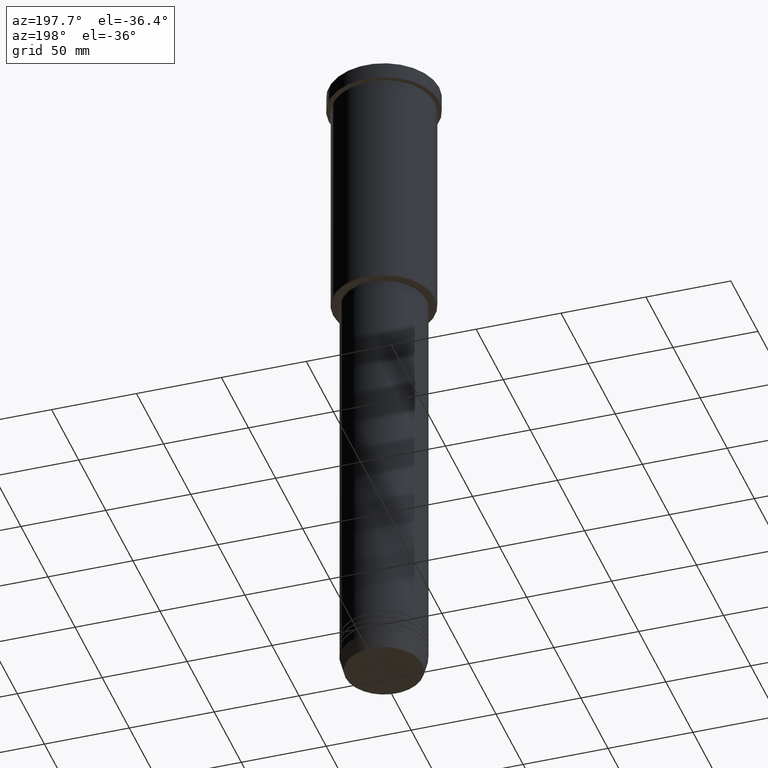
[diagram: clean part render]
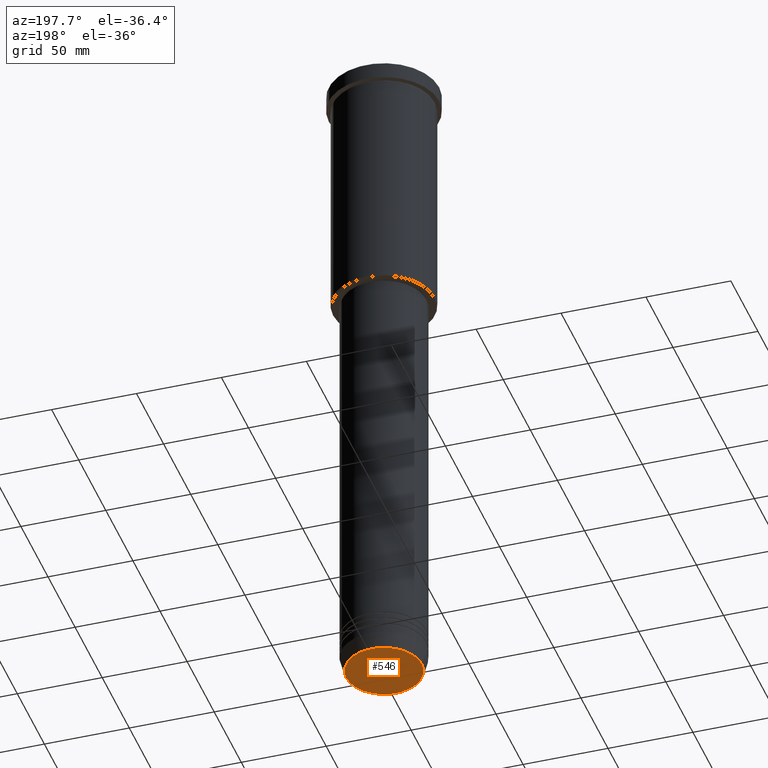
[diagram: same view with one face highlighted and labeled with its STEP entity id]
A machine part, auxiliary view. The second image highlights one B-rep face of the part: STEP entity #546.
In plain terms, the highlighted planar face has unit normal (0, -0, 1).
Its self-contained STEP definition (entity closure, byte-faithful):
#78 = CARTESIAN_POINT ( 'NONE',  ( 0.000000000000000000, 0.000000000000000000, -400.0000000000000000 ) ) ;
#160 = ORIENTED_EDGE ( 'NONE', *, *, #909, .T. ) ;
#161 = DIRECTION ( 'NONE',  ( 1.000000000000000000, 0.000000000000000000, 0.000000000000000000 ) ) ;
#240 = CARTESIAN_POINT ( 'NONE',  ( 0.000000000000000000, 0.000000000000000000, -400.0000000000000000 ) ) ;
#277 = CARTESIAN_POINT ( 'NONE',  ( 22.20479377413040467, 0.000000000000000000, -400.0000000000000000 ) ) ;
#304 = EDGE_CURVE ( 'NONE', #695, #1131, #815, .T. ) ;
#346 = DIRECTION ( 'NONE',  ( 0.000000000000000000, 0.000000000000000000, -1.000000000000000000 ) ) ;
#368 = PLANE ( 'NONE',  #1099 ) ;
#383 = EDGE_LOOP ( 'NONE', ( #160, #897 ) ) ;
#472 = FACE_OUTER_BOUND ( 'NONE', #383, .T. ) ;
#544 = DIRECTION ( 'NONE',  ( 0.000000000000000000, 0.000000000000000000, -1.000000000000000000 ) ) ;
#546 = ADVANCED_FACE ( 'NONE', ( #472 ), #368, .F. ) ;
#563 = DIRECTION ( 'NONE',  ( 0.000000000000000000, -0.000000000000000000, 1.000000000000000000 ) ) ;
#583 = CARTESIAN_POINT ( 'NONE',  ( -22.20479377413040467, 2.748875911406054788E-15, -400.0000000000000000 ) ) ;
#695 = VERTEX_POINT ( 'NONE', #583 ) ;
#756 = AXIS2_PLACEMENT_3D ( 'NONE', #240, #346, #161 ) ;
#815 = CIRCLE ( 'NONE', #1139, 22.20479377413040467 ) ;
#839 = DIRECTION ( 'NONE',  ( 1.000000000000000000, 0.000000000000000000, 0.000000000000000000 ) ) ;
#897 = ORIENTED_EDGE ( 'NONE', *, *, #304, .T. ) ;
#902 = DIRECTION ( 'NONE',  ( 1.000000000000000000, 0.000000000000000000, 0.000000000000000000 ) ) ;
#909 = EDGE_CURVE ( 'NONE', #1131, #695, #1123, .T. ) ;
#916 = CARTESIAN_POINT ( 'NONE',  ( 0.000000000000000000, 0.000000000000000000, -400.0000000000000000 ) ) ;
#1099 = AXIS2_PLACEMENT_3D ( 'NONE', #916, #563, #839 ) ;
#1123 = CIRCLE ( 'NONE', #756, 22.20479377413040467 ) ;
#1131 = VERTEX_POINT ( 'NONE', #277 ) ;
#1139 = AXIS2_PLACEMENT_3D ( 'NONE', #78, #544, #902 ) ;